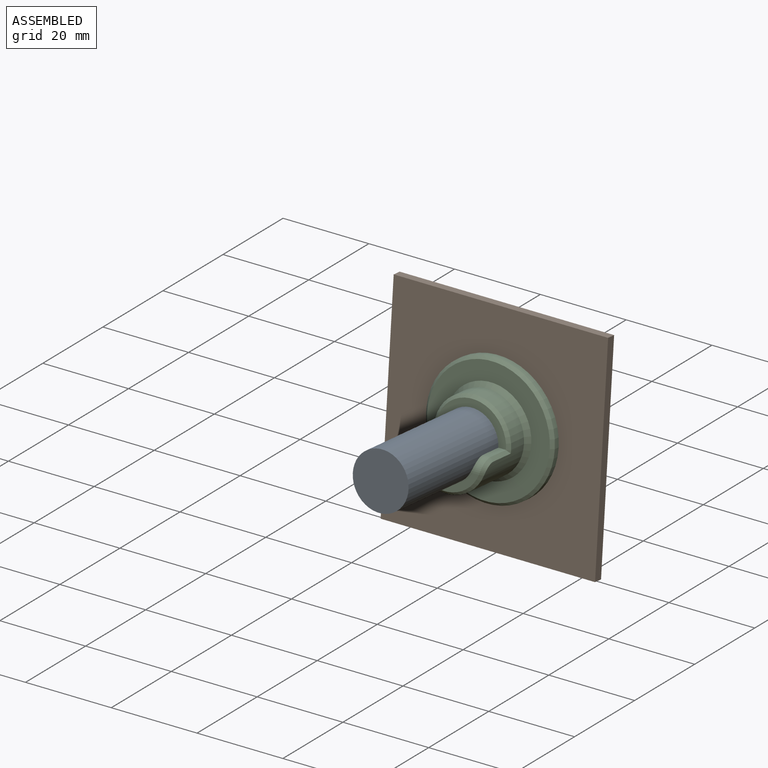
[diagram: assembled view]
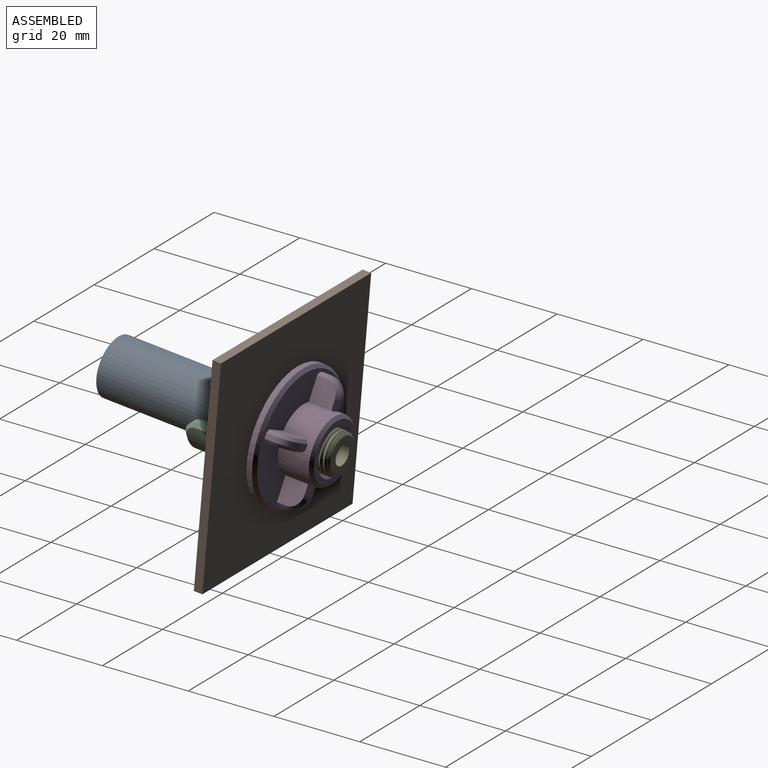
[diagram: assembled view, second angle]
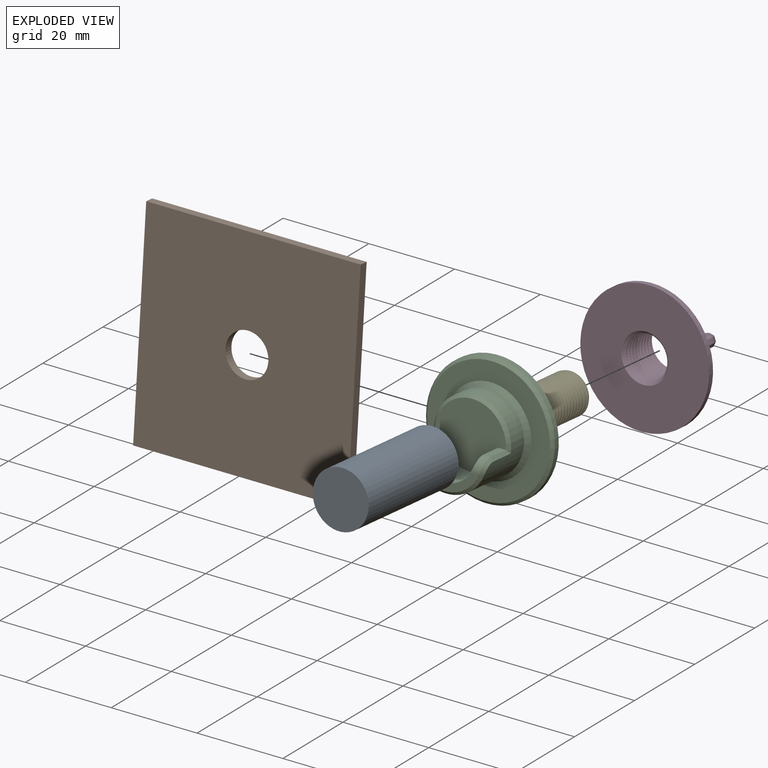
[diagram: exploded view]
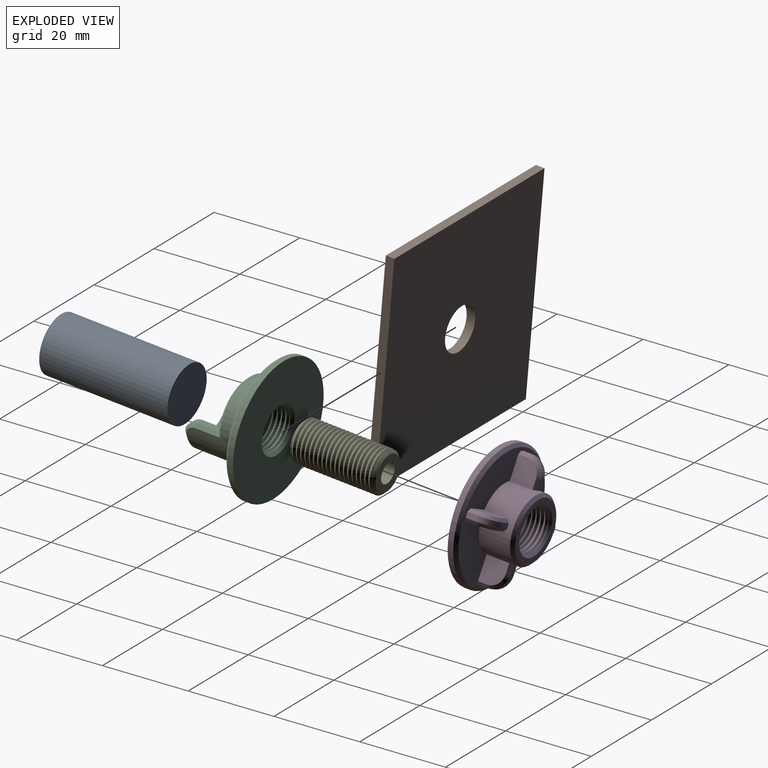
[diagram: exploded view, second angle]
ASSEMBLY  parts=5 mates=3
PART A: 3 faces, bbox 13x13x30 mm
  f0: cylinder r=6.5mm len=30mm, axis (0,0,-1), area 1225.2mm2, adj f1,f2
  f1: plane 13x13mm, normal (0,0,1), area 132.7mm2, adj f0
  f2: plane 13x13mm, normal (0,0,-1), area 132.7mm2, adj f0
PART B: 7 faces, bbox 50x50x2 mm
  f0: plane 50x2mm, normal (-1,0,0), area 100mm2, adj f1,f3,f5,f6
  f1: plane 50x2mm, normal (0,-1,0), area 100mm2, adj f0,f2,f5,f6
  f2: plane 50x2mm, normal (1,0,0), area 100mm2, adj f1,f3,f5,f6
  f3: plane 50x2mm, normal (0,1,0), area 100mm2, adj f0,f2,f5,f6
  f4: cylinder r=5mm len=10mm, axis (0,0,-1), area 62.8mm2, adj f5,f6
  f5: plane 50x50mm, normal (0,0,1), area 2421.5mm2, adj f0,f1,f2,f3,f4
  f6: plane 50x50mm, normal (0,0,-1), area 2421.5mm2, adj f0,f1,f2,f3,f4
PART C: 24 faces, bbox 30.3x30.3x16.5 mm
  f0: plane 16.6x14.8mm, normal (0,0,1), area 174.6mm2, adj f3,f4,f5,f13,f15,f16
  f1: cylinder r=9mm len=18mm, axis (0,0,1), area 454.7mm2, adj f11,f12,f13,f14,f15,f16,f23
  f2: plane 15.48x5.3mm, normal (0,0,1), area 30.7mm2, adj f4,f6,f7,f12
  f3: plane 5x1.77mm, normal (0,1,0), area 8.9mm2, adj f0,f4,f6,f16
  f4: cylinder r=6.5mm len=13mm, axis (0,0,-1), area 154mm2, adj f0,f2,f3,f5,f6,f7
  f5: plane 5x1.77mm, normal (0,1,0), area 8.9mm2, adj f0,f4,f7,f13
  f6: cylinder r=3mm len=3mm, axis (1,0,0), area 8.8mm2, adj f2,f3,f4,f14
  f7: cylinder r=3mm len=3mm, axis (1,0,0), area 8.8mm2, adj f2,f4,f5,f11
  f8: plane 28.6x28.6mm, normal (0,0,1), area 328.3mm2, adj f17,f23
  f9: cylinder r=15mm len=30mm, axis (0,0,-1), area 122.5mm2, adj f10,f17
  f10: plane 30x30mm, normal (0,0,-1), area 613.5mm2, adj f9,f21
  f11: bspline ~3.26x3mm, area 4.4mm2, adj f1,f7,f12,f13
  f12: cone r=8.3mm half-angle=45deg, axis (0,0,-1), area 20.6mm2, adj f1,f2,f11,f14
  f13: plane 5.74x0.79mm, normal (0.74,0.68,0), area 5.5mm2, adj f0,f1,f5,f11,f15
  f14: bspline ~3.26x3mm, area 4.4mm2, adj f1,f6,f12,f16
  f15: cone r=8.3mm half-angle=45deg, axis (0,0,-1), area 27.7mm2, adj f0,f1,f13,f16
  f16: plane 5.74x0.79mm, normal (-0.74,0.68,0), area 5.5mm2, adj f0,f1,f3,f14,f15
  f17: cone r=14.3mm half-angle=45deg, axis (0,0,-1), area 91.1mm2, adj f8,f9
  f18: cylinder r=4.75mm len=9.5mm, axis (0,0,-1), area 25.7mm2, adj f19,f20,f21,f22
  f19: bspline ~11.89x10.3mm, area 79.3mm2, adj f18,f20,f21,f22
  f20: bspline ~11.89x10.3mm, area 79.3mm2, adj f18,f19,f21,f22
  f21: cone r=5.45mm half-angle=45deg, axis (0,0,-1), area 24.8mm2, adj f10,f18,f19,f20
  f22: plane 10.18x10.09mm, normal (0,0,-1), area 75.8mm2, adj f18,f19,f20
  f23: cone r=10mm half-angle=45deg, axis (0,0,-1), area 84.4mm2, adj f1,f8
PART D: 56 faces, bbox 30x30x10.5 mm
  f0: cylinder r=4.75mm len=9.5mm, axis (0,0,-1), area 61.8mm2, adj f4,f5,f6,f7
  f1: cylinder r=7.5mm len=15mm, axis (0,0,-1), area 283.3mm2, adj f9,f10,f11,f13,f14,f15,f17,f18
  f2: plane 13.6x13.6mm, normal (0,0,1), area 52mm2, adj f4,f54
  f3: plane 30x30mm, normal (0,0,-1), area 613.5mm2, adj f5,f8
  f4: cone r=4.75mm half-angle=45deg, axis (0,0,1), area 24.8mm2, adj f0,f2,f6,f7
  f5: cone r=5.45mm half-angle=45deg, axis (0,0,-1), area 24.8mm2, adj f0,f3,f6,f7
  f6: bspline ~11.89x10.3mm, area 159.1mm2, adj f0,f4,f5,f7
  f7: bspline ~11.89x10.3mm, area 158.8mm2, adj f0,f4,f5,f6
  f8: cylinder r=15mm len=30mm, axis (0,0,-1), area 122.5mm2, adj f3,f55
  f9: plane 28.6x28.6mm, normal (0,0,1), area 404.5mm2, adj f1,f10,f11,f12,f14,f15,f16,f18
  f10: plane 5.45x5.3mm, normal (0,-1,0), area 26.5mm2, adj f1,f9,f51,f52,f53
  f11: plane 5.45x5.3mm, normal (0,1,0), area 26.5mm2, adj f1,f9,f48,f49,f50
  f12: plane 2x1.2mm, normal (1,0,0), area 2.4mm2, adj f9,f28,f48,f53
  f13: plane 2.06x1.2mm, normal (0,0,1), area 2.4mm2, adj f1,f28,f50,f51
  f14: plane 5.45x5.3mm, normal (0,1,0), area 26.5mm2, adj f1,f9,f36,f37,f38
  f15: plane 5.45x5.3mm, normal (0,-1,0), area 26.5mm2, adj f1,f9,f39,f40,f41
  f16: plane 2x1.2mm, normal (-1,0,0), area 2.4mm2, adj f9,f29,f38,f39
  f17: plane 2.06x1.2mm, normal (0,0,1), area 2.4mm2, adj f1,f29,f36,f41
  f18: plane 5.45x5.3mm, normal (-1,0,0), area 26.5mm2, adj f1,f9,f33,f34,f35
  f19: plane 5.45x5.3mm, normal (1,0,0), area 26.5mm2, adj f1,f9,f30,f31,f32
  f20: plane 2x1.2mm, normal (0,-1,0), area 2.4mm2, adj f9,f26,f30,f35
  f21: plane 2.06x1.2mm, normal (0,0,1), area 2.4mm2, adj f1,f26,f32,f33
  f22: plane 5.45x5.3mm, normal (1,0,0), area 26.5mm2, adj f1,f9,f42,f43,f44
  f23: plane 5.45x5.3mm, normal (-1,0,0), area 26.5mm2, adj f1,f9,f45,f46,f47
  f24: plane 2x1.2mm, normal (0,1,0), area 2.4mm2, adj f9,f27,f44,f45
  f25: plane 2.06x1.2mm, normal (0,0,1), area 2.4mm2, adj f1,f27,f42,f47
  f26: cylinder r=4mm len=4mm, axis (1,0,0), area 7.5mm2, adj f20,f21,f31,f34
  f27: cylinder r=4mm len=4mm, axis (-1,0,0), area 7.5mm2, adj f24,f25,f43,f46
  f28: cylinder r=4mm len=4mm, axis (0,1,0), area 7.5mm2, adj f12,f13,f49,f52
  f29: cylinder r=4mm len=4mm, axis (0,-1,0), area 7.5mm2, adj f16,f17,f37,f40
  f30: plane 2x0.7mm, normal (0.71,-0.71,0), area 2mm2, adj f9,f19,f20,f31
  f31: cone r=3.3mm half-angle=45deg, axis (-1,0,0), area 5.7mm2, adj f19,f26,f30,f32
  f32: plane 2.15x0.7mm, normal (0.71,0,0.71), area 2.1mm2, adj f1,f19,f21,f31
  f33: plane 2.15x0.7mm, normal (-0.71,0,0.71), area 2.1mm2, adj f1,f18,f21,f34
  f34: cone r=3.3mm half-angle=45deg, axis (1,0,0), area 5.7mm2, adj f18,f26,f33,f35
  f35: plane 2x0.7mm, normal (-0.71,-0.71,0), area 2mm2, adj f9,f18,f20,f34
  f36: plane 2.15x0.7mm, normal (0,0.71,0.71), area 2.1mm2, adj f1,f14,f17,f37
  f37: cone r=3.3mm half-angle=45deg, axis (0,-1,0), area 5.7mm2, adj f14,f29,f36,f38
  f38: plane 2x0.7mm, normal (-0.71,0.71,0), area 2mm2, adj f9,f14,f16,f37
  f39: plane 2x0.7mm, normal (-0.71,-0.71,0), area 2mm2, adj f9,f15,f16,f40
  f40: cone r=3.3mm half-angle=45deg, axis (0,1,0), area 5.7mm2, adj f15,f29,f39,f41
  f41: plane 2.15x0.7mm, normal (0,-0.71,0.71), area 2.1mm2, adj f1,f15,f17,f40
  f42: plane 2.15x0.7mm, normal (0.71,0,0.71), area 2.1mm2, adj f1,f22,f25,f43
  f43: cone r=3.3mm half-angle=45deg, axis (-1,0,0), area 5.7mm2, adj f22,f27,f42,f44
  f44: plane 2x0.7mm, normal (0.71,0.71,0), area 2mm2, adj f9,f22,f24,f43
  f45: plane 2x0.7mm, normal (-0.71,0.71,0), area 2mm2, adj f9,f23,f24,f46
  f46: cone r=3.3mm half-angle=45deg, axis (1,0,0), area 5.7mm2, adj f23,f27,f45,f47
  f47: plane 2.15x0.7mm, normal (-0.71,0,0.71), area 2.1mm2, adj f1,f23,f25,f46
  f48: plane 2x0.7mm, normal (0.71,0.71,0), area 2mm2, adj f9,f11,f12,f49
  f49: cone r=3.3mm half-angle=45deg, axis (0,-1,0), area 5.7mm2, adj f11,f28,f48,f50
  f50: plane 2.15x0.7mm, normal (0,0.71,0.71), area 2.1mm2, adj f1,f11,f13,f49
  f51: plane 2.15x0.7mm, normal (0,-0.71,0.71), area 2.1mm2, adj f1,f10,f13,f52
  f52: cone r=3.3mm half-angle=45deg, axis (0,1,0), area 5.7mm2, adj f10,f28,f51,f53
  f53: plane 2x0.7mm, normal (0.71,-0.71,0), area 2mm2, adj f9,f10,f12,f52
  f54: cone r=6.8mm half-angle=45deg, axis (0,0,-1), area 44.5mm2, adj f1,f2
  f55: cone r=14.3mm half-angle=45deg, axis (0,0,-1), area 91.1mm2, adj f8,f9
PART E: 8 faces, bbox 9.5x11x20.5 mm
  f0: cylinder r=4.75mm len=18.6mm, axis (0,0,-1), area 123.8mm2, adj f4,f5,f6,f7
  f1: cylinder r=2.25mm len=20mm, axis (0,0,-1), area 282.7mm2, adj f2,f3
  f2: plane 8.1x8.1mm, normal (0,0,1), area 35.6mm2, adj f1,f4
  f3: plane 8.1x8.1mm, normal (0,0,-1), area 35.6mm2, adj f1,f5
  f4: cone r=4.05mm half-angle=45deg, axis (0,0,-1), area 20.8mm2, adj f0,f2,f6,f7
  f5: cone r=4.75mm half-angle=45deg, axis (0,0,1), area 20.8mm2, adj f0,f3,f6,f7
  f6: bspline ~20.07x10.97mm, area 306.4mm2, adj f0,f4,f5,f7
  f7: bspline ~20.07x10.97mm, area 306.6mm2, adj f0,f4,f5,f6
PLACE A rot(axis=(1,0,0),85deg) t=(0,-1,-1.21)mm
PLACE B rot(axis=(1,0,0),85deg) t=(0,1,-1.39)mm fixed
PLACE C rot(axis=(1,0,0),85deg) t=(0,-1,-1.21)mm
PLACE D rot(axis=(-0.43,-0.67,-0.61),137deg) t=(0,2.17,-1.49)mm
PLACE E rot(axis=(0,0.68,-0.74),180deg) t=(0,13.95,-2.52)mm
MATE fastened C.f4 <-> A.f0  axis (0,-1,0.09) through (0,-8.97,-0.52)mm
MATE fastened C.f18 <-> E.f0  axis (0,1,-0.09) through (0,-5.98,-0.78)mm
MATE cylindrical E.f1 <-> D.f8  axis (0,1,-0.09) through (0,3.98,-1.65)mm
